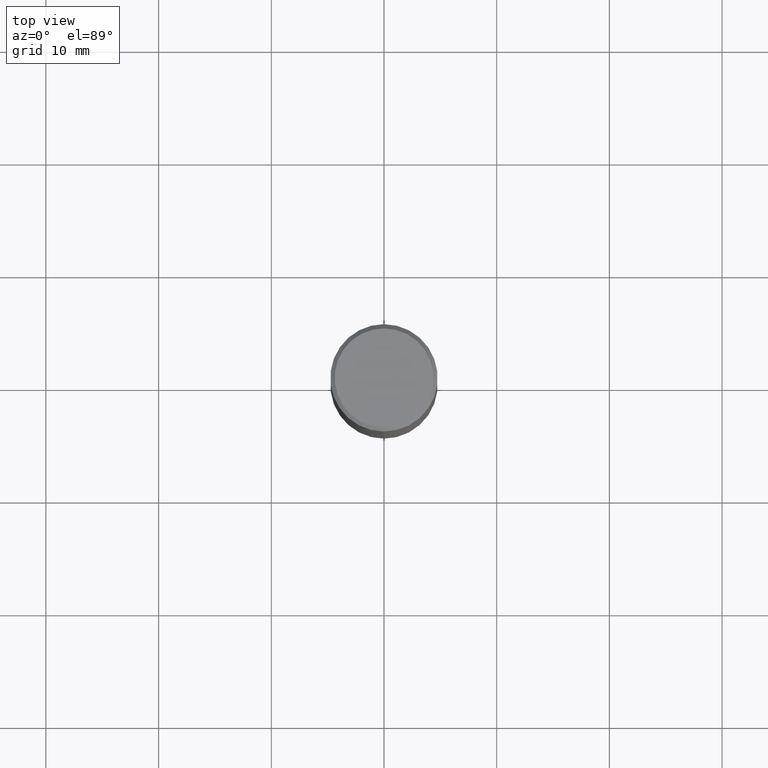
[diagram: clean part render]
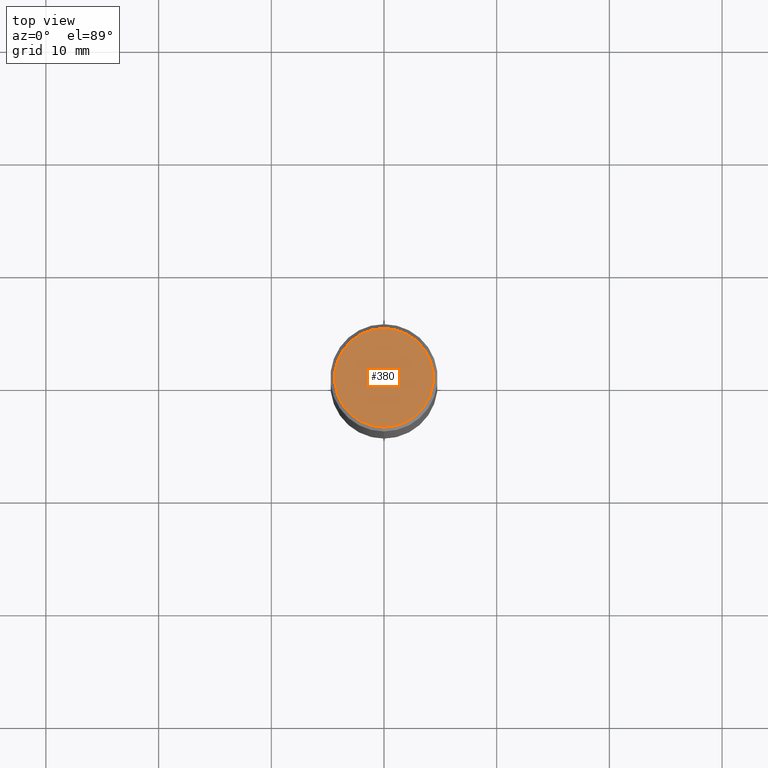
[diagram: same view with one face highlighted and labeled with its STEP entity id]
A machine part, top view. The second image highlights one B-rep face of the part: STEP entity #380.
In plain terms, the highlighted planar face has unit normal (0, -0, -1).
Its self-contained STEP definition (entity closure, byte-faithful):
#3 = VERTEX_POINT ( 'NONE', #417 ) ;
#8 = EDGE_LOOP ( 'NONE', ( #83, #259 ) ) ;
#13 = CARTESIAN_POINT ( 'NONE',  ( -2.199369276727651250E-46, 3.141047476091932851E-32, 8.994982205776030959E-18 ) ) ;
#27 = FACE_OUTER_BOUND ( 'NONE', #8, .T. ) ;
#65 = DIRECTION ( 'NONE',  ( 2.445106867821650011E-29, -3.491999655179910386E-15, -1.000000000000000000 ) ) ;
#83 = ORIENTED_EDGE ( 'NONE', *, *, #286, .T. ) ;
#113 = CARTESIAN_POINT ( 'NONE',  ( -1.234889639598875176E-15, -0.1725000000000000144, 6.113649227243105668E-16 ) ) ;
#133 = CIRCLE ( 'NONE', #350, 0.1725000000000000144 ) ;
#179 = AXIS2_PLACEMENT_3D ( 'NONE', #387, #65, #310 ) ;
#241 = VERTEX_POINT ( 'NONE', #113 ) ;
#258 = DIRECTION ( 'NONE',  ( -2.445106867821650572E-29, 3.491999655179909992E-15, 1.000000000000000000 ) ) ;
#259 = ORIENTED_EDGE ( 'NONE', *, *, #458, .T. ) ;
#265 = AXIS2_PLACEMENT_3D ( 'NONE', #273, #377, #362 ) ;
#273 = CARTESIAN_POINT ( 'NONE',  ( -2.199369276727651250E-46, 3.141047476091932851E-32, 8.994982205776030959E-18 ) ) ;
#286 = EDGE_CURVE ( 'NONE', #3, #241, #133, .T. ) ;
#295 = CIRCLE ( 'NONE', #265, 0.1725000000000000144 ) ;
#310 = DIRECTION ( 'NONE',  ( 6.982962677686265922E-15, 1.000000000000000000, -3.491999655179910386E-15 ) ) ;
#350 = AXIS2_PLACEMENT_3D ( 'NONE', #13, #258, #368 ) ;
#362 = DIRECTION ( 'NONE',  ( -6.982962677686266711E-15, -1.000000000000000000, 3.491999655179909992E-15 ) ) ;
#368 = DIRECTION ( 'NONE',  ( -6.982962677686266711E-15, -1.000000000000000000, 3.491999655179909992E-15 ) ) ;
#377 = DIRECTION ( 'NONE',  ( -2.445106867821650572E-29, 3.491999655179909992E-15, 1.000000000000000000 ) ) ;
#380 = ADVANCED_FACE ( 'NONE', ( #27 ), #494, .F. ) ;
#387 = CARTESIAN_POINT ( 'NONE',  ( 1.204561061900881047E-15, 0.1725000000000000144, -5.978724494156464949E-16 ) ) ;
#417 = CARTESIAN_POINT ( 'NONE',  ( 1.256933281983528323E-15, 0.1725000000000000144, -5.933749583127584710E-16 ) ) ;
#458 = EDGE_CURVE ( 'NONE', #241, #3, #295, .T. ) ;
#494 = PLANE ( 'NONE',  #179 ) ;